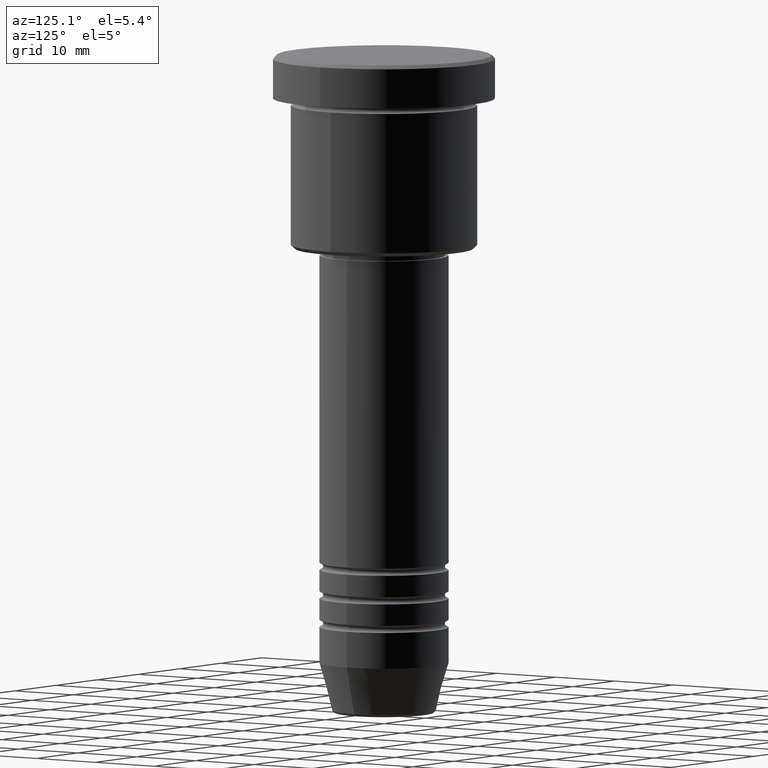
[diagram: clean part render]
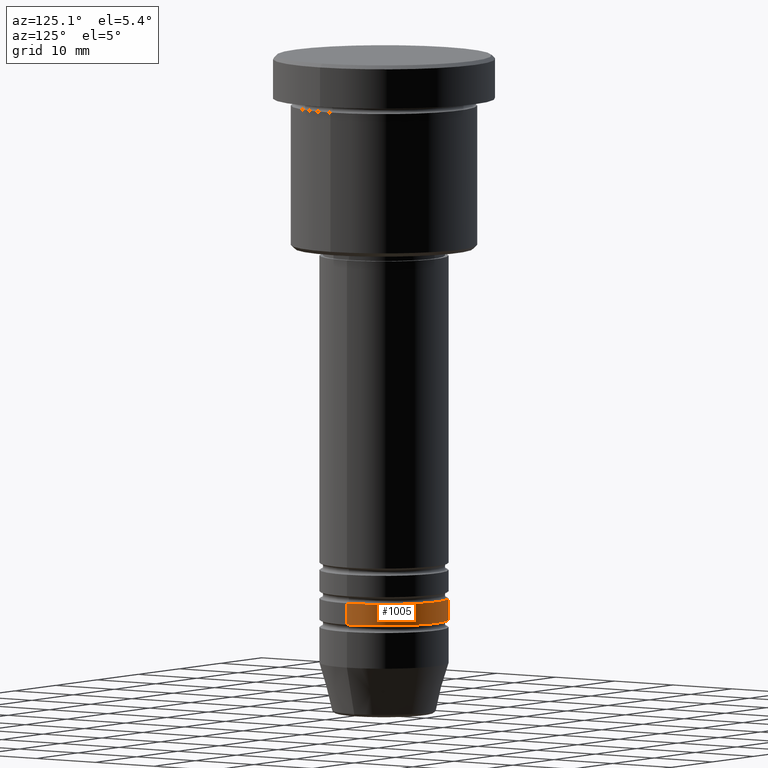
[diagram: same view with one face highlighted and labeled with its STEP entity id]
A machine part, auxiliary view. The second image highlights one B-rep face of the part: STEP entity #1005.
In plain terms, the highlighted cylindrical surface (partial cylindrical patch) has radius 9 mm, axis along (-0, -0, 1).
Its self-contained STEP definition (entity closure, byte-faithful):
#1 = VECTOR ( 'NONE', #276, 1000.000000000000000 ) ;
#18 = AXIS2_PLACEMENT_3D ( 'NONE', #672, #324, #413 ) ;
#27 = VERTEX_POINT ( 'NONE', #851 ) ;
#177 = ORIENTED_EDGE ( 'NONE', *, *, #909, .T. ) ;
#179 = CARTESIAN_POINT ( 'NONE',  ( 0.000000000000000000, 0.000000000000000000, -78.99999999999988631 ) ) ;
#222 = DIRECTION ( 'NONE',  ( -0.000000000000000000, -0.000000000000000000, 1.000000000000000000 ) ) ;
#276 = DIRECTION ( 'NONE',  ( -0.000000000000000000, -0.000000000000000000, 1.000000000000000000 ) ) ;
#308 = DIRECTION ( 'NONE',  ( 1.000000000000000000, 0.000000000000000000, 0.000000000000000000 ) ) ;
#318 = CIRCLE ( 'NONE', #509, 9.000000000000001776 ) ;
#322 = CARTESIAN_POINT ( 'NONE',  ( 9.000000000000000000, 0.000000000000000000, -75.99999999999990052 ) ) ;
#324 = DIRECTION ( 'NONE',  ( -0.000000000000000000, -0.000000000000000000, 1.000000000000000000 ) ) ;
#341 = AXIS2_PLACEMENT_3D ( 'NONE', #585, #222, #308 ) ;
#359 = VERTEX_POINT ( 'NONE', #362 ) ;
#362 = CARTESIAN_POINT ( 'NONE',  ( -9.000000000000001776, 1.102182119232617911E-15, -78.99999999999988631 ) ) ;
#381 = ORIENTED_EDGE ( 'NONE', *, *, #898, .T. ) ;
#402 = DIRECTION ( 'NONE',  ( -0.000000000000000000, -0.000000000000000000, 1.000000000000000000 ) ) ;
#409 = LINE ( 'NONE', #769, #662 ) ;
#413 = DIRECTION ( 'NONE',  ( 1.000000000000000000, 0.000000000000000000, 0.000000000000000000 ) ) ;
#478 = DIRECTION ( 'NONE',  ( -0.000000000000000000, -0.000000000000000000, 1.000000000000000000 ) ) ;
#490 = CYLINDRICAL_SURFACE ( 'NONE', #341, 9.000000000000001776 ) ;
#498 = CARTESIAN_POINT ( 'NONE',  ( 9.000000000000001776, 0.000000000000000000, -78.99999999999988631 ) ) ;
#506 = ORIENTED_EDGE ( 'NONE', *, *, #998, .F. ) ;
#509 = AXIS2_PLACEMENT_3D ( 'NONE', #179, #478, #544 ) ;
#544 = DIRECTION ( 'NONE',  ( 1.000000000000000000, 0.000000000000000000, 0.000000000000000000 ) ) ;
#551 = ORIENTED_EDGE ( 'NONE', *, *, #667, .F. ) ;
#563 = CIRCLE ( 'NONE', #18, 9.000000000000000000 ) ;
#572 = FACE_OUTER_BOUND ( 'NONE', #603, .T. ) ;
#585 = CARTESIAN_POINT ( 'NONE',  ( 0.000000000000000000, 0.000000000000000000, 0.000000000000000000 ) ) ;
#603 = EDGE_LOOP ( 'NONE', ( #381, #177, #506, #551 ) ) ;
#662 = VECTOR ( 'NONE', #402, 1000.000000000000000 ) ;
#667 = EDGE_CURVE ( 'NONE', #693, #806, #409, .T. ) ;
#672 = CARTESIAN_POINT ( 'NONE',  ( 0.000000000000000000, 0.000000000000000000, -75.99999999999990052 ) ) ;
#693 = VERTEX_POINT ( 'NONE', #498 ) ;
#769 = CARTESIAN_POINT ( 'NONE',  ( 9.000000000000001776, 0.000000000000000000, 0.000000000000000000 ) ) ;
#806 = VERTEX_POINT ( 'NONE', #322 ) ;
#825 = CARTESIAN_POINT ( 'NONE',  ( -9.000000000000001776, 1.102182119232617911E-15, 0.000000000000000000 ) ) ;
#851 = CARTESIAN_POINT ( 'NONE',  ( -9.000000000000000000, 1.102182119232617714E-15, -75.99999999999990052 ) ) ;
#898 = EDGE_CURVE ( 'NONE', #693, #359, #318, .T. ) ;
#909 = EDGE_CURVE ( 'NONE', #359, #27, #917, .T. ) ;
#917 = LINE ( 'NONE', #825, #1 ) ;
#998 = EDGE_CURVE ( 'NONE', #806, #27, #563, .T. ) ;
#1005 = ADVANCED_FACE ( 'NONE', ( #572 ), #490, .T. ) ;